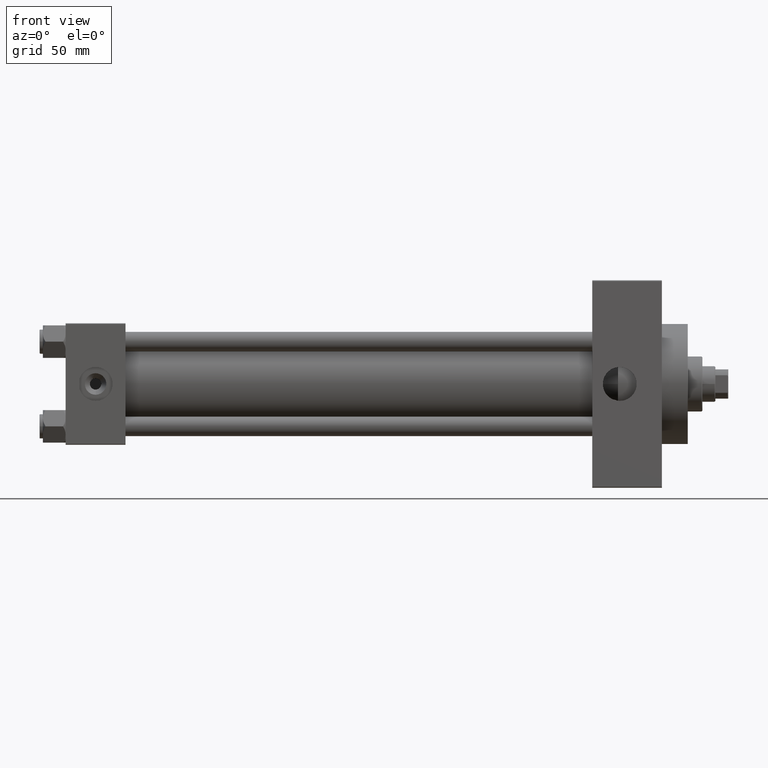
[diagram: clean part render]
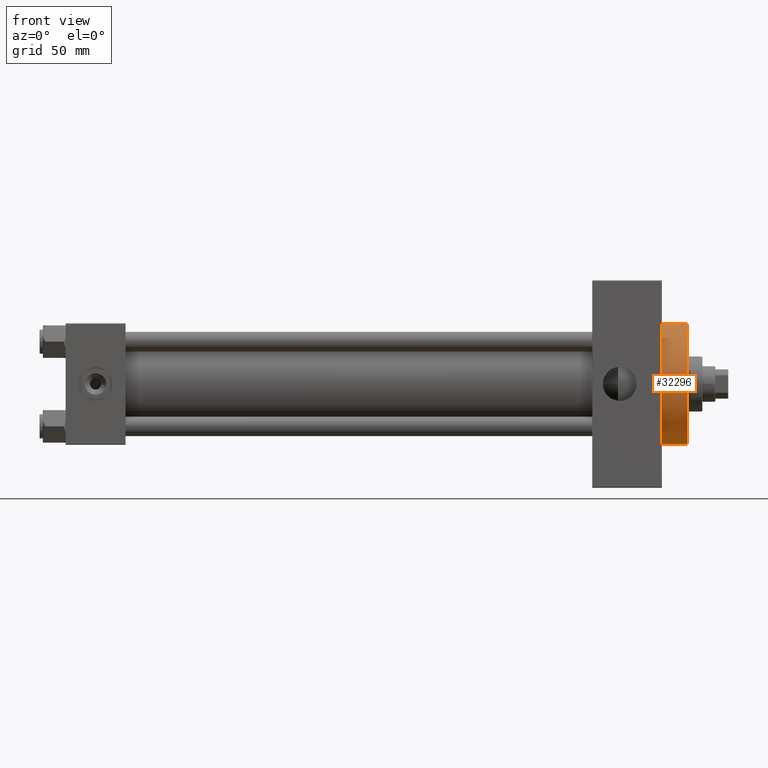
[diagram: same view with one face highlighted and labeled with its STEP entity id]
A machine part, front view. The second image highlights one B-rep face of the part: STEP entity #32296.
In plain terms, the highlighted cylindrical surface (partial cylindrical patch) has radius 37 mm, axis along (-1, -0, -0).
Its self-contained STEP definition (entity closure, byte-faithful):
#1053 = DIRECTION ( 'NONE',  ( 1.000000000000000000, 0.000000000000000000, 0.000000000000000000 ) ) ;
#1148 = VERTEX_POINT ( 'NONE', #7745 ) ;
#2338 = CARTESIAN_POINT ( 'NONE',  ( 383.9999999999999432, 0.000000000000000000, 37.00000000000000000 ) ) ;
#4137 = CARTESIAN_POINT ( 'NONE',  ( 383.9999999999999432, 4.531193156845206793E-15, -37.00000000000000000 ) ) ;
#4902 = DIRECTION ( 'NONE',  ( -1.000000000000000000, -0.000000000000000000, -0.000000000000000000 ) ) ;
#5537 = CARTESIAN_POINT ( 'NONE',  ( 383.9999999999999432, 0.000000000000000000, 0.000000000000000000 ) ) ;
#7745 = CARTESIAN_POINT ( 'NONE',  ( 383.9999999999999432, 4.531193156845206793E-15, -37.00000000000000000 ) ) ;
#7818 = VECTOR ( 'NONE', #19332, 1000.000000000000000 ) ;
#10405 = CARTESIAN_POINT ( 'NONE',  ( 383.9999999999999432, 0.000000000000000000, 0.000000000000000000 ) ) ;
#12863 = CARTESIAN_POINT ( 'NONE',  ( 367.9999999999999432, 4.531193156845206793E-15, -37.00000000000000000 ) ) ;
#13092 = CIRCLE ( 'NONE', #41741, 37.00000000000000000 ) ;
#14820 = CIRCLE ( 'NONE', #21157, 37.00000000000000000 ) ;
#15014 = DIRECTION ( 'NONE',  ( 1.000000000000000000, 0.000000000000000000, 0.000000000000000000 ) ) ;
#16498 = DIRECTION ( 'NONE',  ( 0.000000000000000000, 0.000000000000000000, -1.000000000000000000 ) ) ;
#17745 = CARTESIAN_POINT ( 'NONE',  ( 367.9999999999999432, 0.000000000000000000, 0.000000000000000000 ) ) ;
#18751 = DIRECTION ( 'NONE',  ( 0.000000000000000000, 0.000000000000000000, -1.000000000000000000 ) ) ;
#19332 = DIRECTION ( 'NONE',  ( -1.000000000000000000, -0.000000000000000000, -0.000000000000000000 ) ) ;
#20197 = CYLINDRICAL_SURFACE ( 'NONE', #32359, 37.00000000000000000 ) ;
#20395 = VERTEX_POINT ( 'NONE', #45234 ) ;
#21157 = AXIS2_PLACEMENT_3D ( 'NONE', #17745, #15014, #18751 ) ;
#22409 = ORIENTED_EDGE ( 'NONE', *, *, #24413, .F. ) ;
#24413 = EDGE_CURVE ( 'NONE', #46598, #1148, #13092, .T. ) ;
#26598 = VERTEX_POINT ( 'NONE', #12863 ) ;
#27577 = LINE ( 'NONE', #2338, #27781 ) ;
#27781 = VECTOR ( 'NONE', #4902, 1000.000000000000000 ) ;
#29094 = DIRECTION ( 'NONE',  ( 0.000000000000000000, 0.000000000000000000, 1.000000000000000000 ) ) ;
#29690 = EDGE_LOOP ( 'NONE', ( #46700, #22409, #39235, #36433 ) ) ;
#32102 = EDGE_CURVE ( 'NONE', #20395, #26598, #14820, .T. ) ;
#32296 = ADVANCED_FACE ( 'NONE', ( #40777 ), #20197, .T. ) ;
#32359 = AXIS2_PLACEMENT_3D ( 'NONE', #10405, #47775, #29094 ) ;
#36433 = ORIENTED_EDGE ( 'NONE', *, *, #32102, .T. ) ;
#36665 = EDGE_CURVE ( 'NONE', #1148, #26598, #38251, .T. ) ;
#38251 = LINE ( 'NONE', #4137, #7818 ) ;
#38619 = EDGE_CURVE ( 'NONE', #46598, #20395, #27577, .T. ) ;
#39235 = ORIENTED_EDGE ( 'NONE', *, *, #38619, .T. ) ;
#40777 = FACE_OUTER_BOUND ( 'NONE', #29690, .T. ) ;
#41741 = AXIS2_PLACEMENT_3D ( 'NONE', #5537, #1053, #16498 ) ;
#45234 = CARTESIAN_POINT ( 'NONE',  ( 367.9999999999999432, 0.000000000000000000, 37.00000000000000000 ) ) ;
#46598 = VERTEX_POINT ( 'NONE', #48229 ) ;
#46700 = ORIENTED_EDGE ( 'NONE', *, *, #36665, .F. ) ;
#47775 = DIRECTION ( 'NONE',  ( -1.000000000000000000, -0.000000000000000000, -0.000000000000000000 ) ) ;
#48229 = CARTESIAN_POINT ( 'NONE',  ( 383.9999999999999432, 0.000000000000000000, 37.00000000000000000 ) ) ;